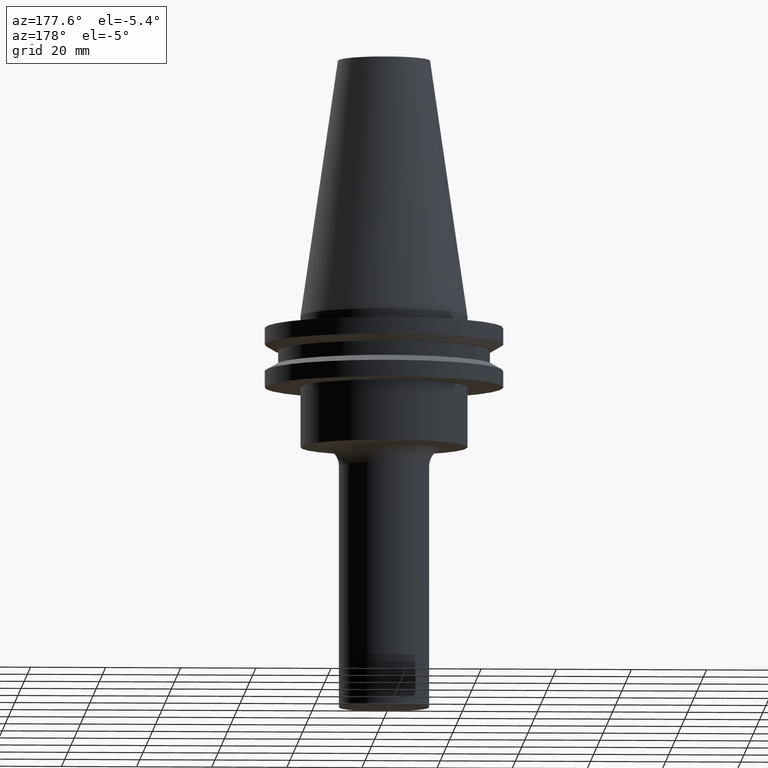
[diagram: clean part render]
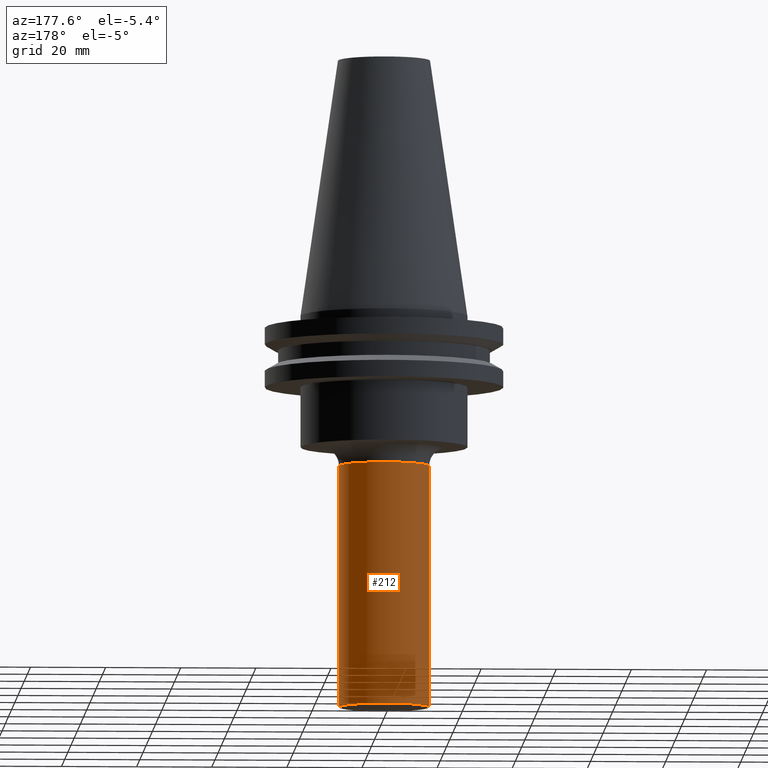
[diagram: same view with one face highlighted and labeled with its STEP entity id]
A machine part, auxiliary view. The second image highlights one B-rep face of the part: STEP entity #212.
In plain terms, the highlighted cylindrical surface (partial cylindrical patch) has radius 12 mm, axis along (-0, -0, 1).
Its self-contained STEP definition (entity closure, byte-faithful):
#12 = CARTESIAN_POINT ( 'NONE',  ( 12.00000000000000000, 0.000000000000000000, -40.04999999999999716 ) ) ;
#13 = CYLINDRICAL_SURFACE ( 'NONE', #759, 12.00000000000000000 ) ;
#26 = VERTEX_POINT ( 'NONE', #114 ) ;
#31 = CARTESIAN_POINT ( 'NONE',  ( -12.00000000000000000, 1.469576158976823947E-15, -104.5000000000000000 ) ) ;
#32 = DIRECTION ( 'NONE',  ( 1.000000000000000000, 0.000000000000000000, 0.000000000000000000 ) ) ;
#38 = LINE ( 'NONE', #285, #692 ) ;
#64 = CARTESIAN_POINT ( 'NONE',  ( 0.000000000000000000, 0.000000000000000000, -104.5000000000000000 ) ) ;
#75 = EDGE_CURVE ( 'NONE', #26, #679, #166, .T. ) ;
#92 = AXIS2_PLACEMENT_3D ( 'NONE', #64, #185, #652 ) ;
#114 = CARTESIAN_POINT ( 'NONE',  ( 12.00000000000000000, 0.000000000000000000, -104.5000000000000000 ) ) ;
#118 = DIRECTION ( 'NONE',  ( -0.000000000000000000, -0.000000000000000000, 1.000000000000000000 ) ) ;
#166 = LINE ( 'NONE', #583, #565 ) ;
#175 = ORIENTED_EDGE ( 'NONE', *, *, #426, .T. ) ;
#185 = DIRECTION ( 'NONE',  ( -0.000000000000000000, -0.000000000000000000, 1.000000000000000000 ) ) ;
#189 = ORIENTED_EDGE ( 'NONE', *, *, #299, .T. ) ;
#212 = ADVANCED_FACE ( 'NONE', ( #431 ), #13, .T. ) ;
#238 = VERTEX_POINT ( 'NONE', #762 ) ;
#252 = CARTESIAN_POINT ( 'NONE',  ( 0.000000000000000000, 0.000000000000000000, -40.04999999999999716 ) ) ;
#266 = EDGE_LOOP ( 'NONE', ( #175, #189, #429, #726 ) ) ;
#285 = CARTESIAN_POINT ( 'NONE',  ( -12.00000000000000000, 1.469576158976823947E-15, 0.000000000000000000 ) ) ;
#299 = EDGE_CURVE ( 'NONE', #776, #238, #38, .T. ) ;
#392 = CIRCLE ( 'NONE', #92, 12.00000000000000000 ) ;
#426 = EDGE_CURVE ( 'NONE', #26, #776, #392, .T. ) ;
#429 = ORIENTED_EDGE ( 'NONE', *, *, #682, .F. ) ;
#431 = FACE_OUTER_BOUND ( 'NONE', #266, .T. ) ;
#447 = DIRECTION ( 'NONE',  ( 1.000000000000000000, 0.000000000000000000, 0.000000000000000000 ) ) ;
#457 = CIRCLE ( 'NONE', #693, 12.00000000000000000 ) ;
#490 = CARTESIAN_POINT ( 'NONE',  ( 0.000000000000000000, 0.000000000000000000, 0.000000000000000000 ) ) ;
#565 = VECTOR ( 'NONE', #118, 1000.000000000000000 ) ;
#573 = DIRECTION ( 'NONE',  ( -0.000000000000000000, -0.000000000000000000, 1.000000000000000000 ) ) ;
#583 = CARTESIAN_POINT ( 'NONE',  ( 12.00000000000000000, 0.000000000000000000, 0.000000000000000000 ) ) ;
#652 = DIRECTION ( 'NONE',  ( 1.000000000000000000, 0.000000000000000000, 0.000000000000000000 ) ) ;
#668 = DIRECTION ( 'NONE',  ( -0.000000000000000000, -0.000000000000000000, 1.000000000000000000 ) ) ;
#679 = VERTEX_POINT ( 'NONE', #12 ) ;
#682 = EDGE_CURVE ( 'NONE', #679, #238, #457, .T. ) ;
#692 = VECTOR ( 'NONE', #573, 1000.000000000000000 ) ;
#693 = AXIS2_PLACEMENT_3D ( 'NONE', #252, #751, #447 ) ;
#726 = ORIENTED_EDGE ( 'NONE', *, *, #75, .F. ) ;
#751 = DIRECTION ( 'NONE',  ( -0.000000000000000000, -0.000000000000000000, 1.000000000000000000 ) ) ;
#759 = AXIS2_PLACEMENT_3D ( 'NONE', #490, #668, #32 ) ;
#762 = CARTESIAN_POINT ( 'NONE',  ( -12.00000000000000000, 1.469576158976823947E-15, -40.04999999999999716 ) ) ;
#776 = VERTEX_POINT ( 'NONE', #31 ) ;